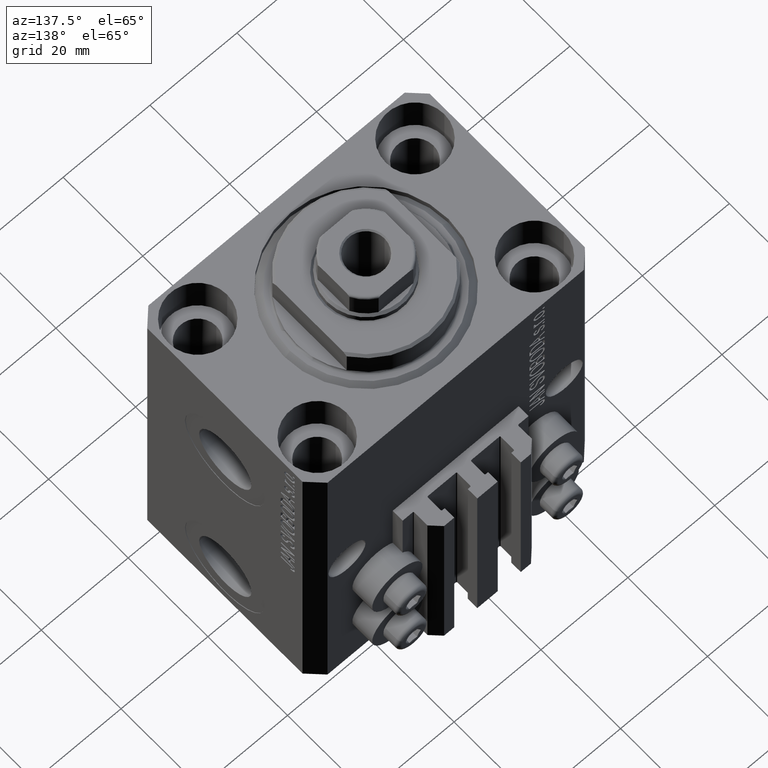
[diagram: clean part render]
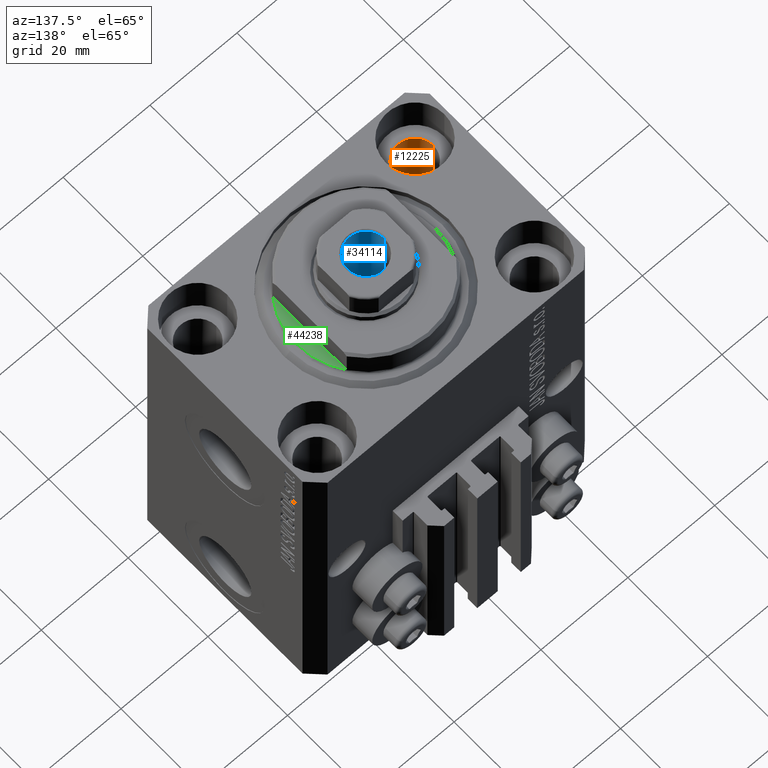
[diagram: same view with three faces highlighted in distinct colors, each labeled with its STEP entity id]
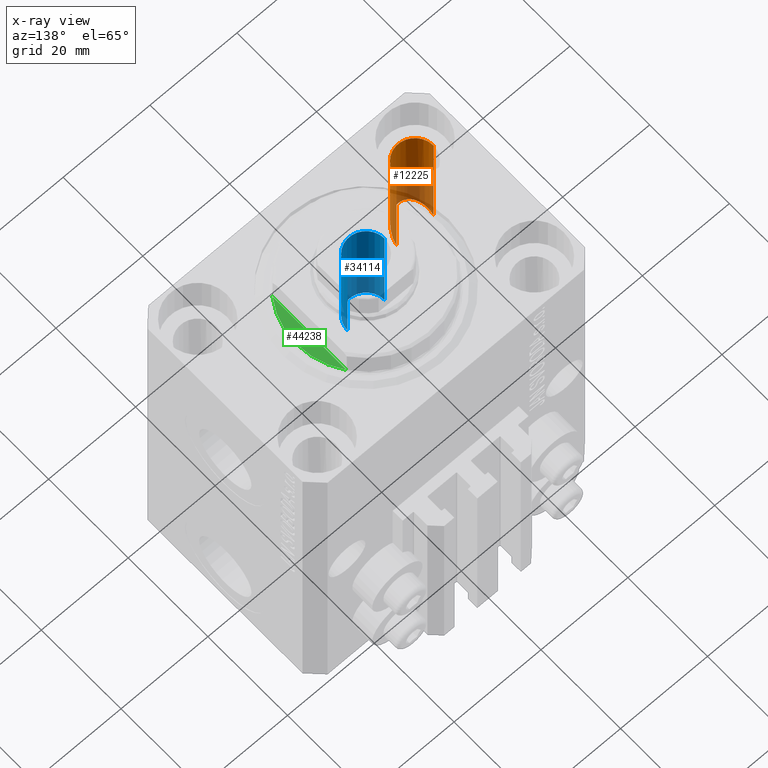
[diagram: x-ray of the same camera — body ghosted, the three highlighted faces saturated]
A machine part, auxiliary view with three faces highlighted in distinct colors.
The next image is the same camera in x-ray (body ghosted, the three faces saturated) — at least one of them is partly hidden behind the body in this view.
Their STEP definitions:

[orange] entity #12225 — the highlighted cylindrical surface (edge-blend (fillet) strip) has radius 4.25 mm, axis along (0, 0, 1).
#2353 = FACE_OUTER_BOUND ( 'NONE', #5673, .T. ) ;
#2759 = CARTESIAN_POINT ( 'NONE',  ( -20.74999999998233946, -15.00000000000000000, -37.00000000000000000 ) ) ;
#3603 = CARTESIAN_POINT ( 'NONE',  ( -25.00000000000000355, -15.00000000000000000, -9.000000000000000000 ) ) ;
#4931 = VECTOR ( 'NONE', #30418, 1000.000000000000000 ) ;
#5673 = EDGE_LOOP ( 'NONE', ( #9025, #20532, #26537, #43459 ) ) ;
#8249 = EDGE_CURVE ( 'NONE', #19794, #13186, #26086, .T. ) ;
#8651 = VECTOR ( 'NONE', #44242, 1000.000000000000000 ) ;
#9025 = ORIENTED_EDGE ( 'NONE', *, *, #47203, .T. ) ;
#9043 = DIRECTION ( 'NONE',  ( 1.000000000000000000, 0.000000000000000000, 0.000000000000000000 ) ) ;
#10910 = CARTESIAN_POINT ( 'NONE',  ( -20.74999999998233946, -23.50000000003532108, -28.49999999996468247 ) ) ;
#12225 = ADVANCED_FACE ( 'NONE', ( #2353 ), #13097, .F. ) ;
#13097 = CYLINDRICAL_SURFACE ( 'NONE', #19324, 4.250000000041540105 ) ;
#13186 = VERTEX_POINT ( 'NONE', #36163 ) ;
#14347 = DIRECTION ( 'NONE',  ( 0.000000000000000000, 0.000000000000000000, 1.000000000000000000 ) ) ;
#15162 = CARTESIAN_POINT ( 'NONE',  ( -29.25000000004154543, -15.00000000000000000, -77.00000000000000000 ) ) ;
#17158 = CARTESIAN_POINT ( 'NONE',  ( -25.00000000000000355, -15.00000000000000000, -77.00000000000000000 ) ) ;
#18168 = DIRECTION ( 'NONE',  ( 1.000000000000000000, 0.000000000000000000, 0.000000000000000000 ) ) ;
#18711 = CARTESIAN_POINT ( 'NONE',  ( -20.74999999995846522, -15.00000000000000000, -77.00000000000000000 ) ) ;
#19324 = AXIS2_PLACEMENT_3D ( 'NONE', #17158, #41744, #9043 ) ;
#19575 = CARTESIAN_POINT ( 'NONE',  ( -29.25000000001766409, -15.00000000000000000, -37.00000000000000000 ) ) ;
#19794 = VERTEX_POINT ( 'NONE', #2759 ) ;
#20030 = EDGE_CURVE ( 'NONE', #34042, #39090, #22310, .T. ) ;
#20532 = ORIENTED_EDGE ( 'NONE', *, *, #20030, .T. ) ;
#20729 = CARTESIAN_POINT ( 'NONE',  ( -29.25000000001766409, -23.50000000003532108, -28.49999999996468247 ) ) ;
#22310 = LINE ( 'NONE', #15162, #4931 ) ;
#25461 = CARTESIAN_POINT ( 'NONE',  ( -20.74999999998233946, -15.00000000000000000, -37.00000000000000000 ) ) ;
#25606 = CIRCLE ( 'NONE', #33263, 4.250000000041540105 ) ;
#26086 = LINE ( 'NONE', #18711, #8651 ) ;
#26537 = ORIENTED_EDGE ( 'NONE', *, *, #43108, .T. ) ;
#30418 = DIRECTION ( 'NONE',  ( -0.000000000000000000, -0.000000000000000000, 1.000000000000000000 ) ) ;
#33263 = AXIS2_PLACEMENT_3D ( 'NONE', #3603, #14347, #18168 ) ;
#34042 = VERTEX_POINT ( 'NONE', #19575 ) ;
#36163 = CARTESIAN_POINT ( 'NONE',  ( -20.74999999995846522, -15.00000000000000000, -9.000000000000000000 ) ) ;
#39090 = VERTEX_POINT ( 'NONE', #45355 ) ;
#39567 =( BOUNDED_CURVE ( )  B_SPLINE_CURVE ( 3, ( #25461, #10910, #20729, #46485 ),
 .UNSPECIFIED., .F., .F. ) 
 B_SPLINE_CURVE_WITH_KNOTS ( ( 4, 4 ),
 ( 4.712388980384689674, 7.853981633974482790 ),
 .UNSPECIFIED. ) 
 CURVE ( )  GEOMETRIC_REPRESENTATION_ITEM ( )  RATIONAL_B_SPLINE_CURVE ( ( 1.000000000000000000, 0.3333333333333333703, 0.3333333333333333703, 1.000000000000000000 ) ) 
 REPRESENTATION_ITEM ( '' )  );
#41744 = DIRECTION ( 'NONE',  ( -0.000000000000000000, -0.000000000000000000, 1.000000000000000000 ) ) ;
#43108 = EDGE_CURVE ( 'NONE', #39090, #13186, #25606, .T. ) ;
#43459 = ORIENTED_EDGE ( 'NONE', *, *, #8249, .F. ) ;
#44242 = DIRECTION ( 'NONE',  ( -0.000000000000000000, -0.000000000000000000, 1.000000000000000000 ) ) ;
#45355 = CARTESIAN_POINT ( 'NONE',  ( -29.25000000004154543, -15.00000000000000000, -9.000000000000000000 ) ) ;
#46485 = CARTESIAN_POINT ( 'NONE',  ( -29.25000000001766409, -15.00000000000000000, -37.00000000000000000 ) ) ;
#47203 = EDGE_CURVE ( 'NONE', #19794, #34042, #39567, .T. ) ;

[blue] entity #34114 — the highlighted cylindrical surface (edge-blend (fillet) strip) has radius 4.25 mm, axis along (0, 0, 1).
#198 = EDGE_CURVE ( 'NONE', #6131, #33472, #16762, .T. ) ;
#855 = AXIS2_PLACEMENT_3D ( 'NONE', #17613, #3286, #46490 ) ;
#876 = DIRECTION ( 'NONE',  ( -0.000000000000000000, -0.000000000000000000, 1.000000000000000000 ) ) ;
#973 = ORIENTED_EDGE ( 'NONE', *, *, #3450, .F. ) ;
#3286 = DIRECTION ( 'NONE',  ( -0.000000000000000000, -0.000000000000000000, 1.000000000000000000 ) ) ;
#3450 = EDGE_CURVE ( 'NONE', #12197, #11165, #15331, .T. ) ;
#5158 = CARTESIAN_POINT ( 'NONE',  ( 4.249999999999996447, 0.000000000000000000, 84.00000000000000000 ) ) ;
#5708 = CYLINDRICAL_SURFACE ( 'NONE', #29638, 4.249999999999996447 ) ;
#6131 = VERTEX_POINT ( 'NONE', #18997 ) ;
#7555 = CARTESIAN_POINT ( 'NONE',  ( -4.249999999999996447, 5.204748896376247741E-16, 84.00000000000000000 ) ) ;
#9409 = ORIENTED_EDGE ( 'NONE', *, *, #22296, .F. ) ;
#9640 = DIRECTION ( 'NONE',  ( 0.000000000000000000, 0.000000000000000000, 1.000000000000000000 ) ) ;
#9937 = ORIENTED_EDGE ( 'NONE', *, *, #198, .T. ) ;
#11165 = VERTEX_POINT ( 'NONE', #43856 ) ;
#12197 = VERTEX_POINT ( 'NONE', #13335 ) ;
#12221 = ORIENTED_EDGE ( 'NONE', *, *, #37713, .T. ) ;
#13335 = CARTESIAN_POINT ( 'NONE',  ( -4.249999999999994671, 5.204748896376244783E-16, 59.00000000000000711 ) ) ;
#15331 = CIRCLE ( 'NONE', #855, 4.249999999999994671 ) ;
#15643 = CARTESIAN_POINT ( 'NONE',  ( 4.249999999999996447, 0.000000000000000000, 83.70000000000001705 ) ) ;
#16762 = CIRCLE ( 'NONE', #43437, 4.249999999999996447 ) ;
#17210 = EDGE_LOOP ( 'NONE', ( #973, #12221, #9937, #9409 ) ) ;
#17613 = CARTESIAN_POINT ( 'NONE',  ( 0.000000000000000000, 0.000000000000000000, 59.00000000000000711 ) ) ;
#17931 = VECTOR ( 'NONE', #876, 1000.000000000000000 ) ;
#18997 = CARTESIAN_POINT ( 'NONE',  ( -4.249999999999996447, 5.204748896376247741E-16, 83.70000000000001705 ) ) ;
#21390 = VECTOR ( 'NONE', #40720, 1000.000000000000000 ) ;
#22296 = EDGE_CURVE ( 'NONE', #11165, #33472, #23288, .T. ) ;
#23288 = LINE ( 'NONE', #5158, #17931 ) ;
#24061 = DIRECTION ( 'NONE',  ( 1.000000000000000000, 0.000000000000000000, 0.000000000000000000 ) ) ;
#24299 = CARTESIAN_POINT ( 'NONE',  ( 0.000000000000000000, 0.000000000000000000, 84.00000000000000000 ) ) ;
#29638 = AXIS2_PLACEMENT_3D ( 'NONE', #24299, #42455, #24061 ) ;
#33472 = VERTEX_POINT ( 'NONE', #15643 ) ;
#34114 = ADVANCED_FACE ( 'NONE', ( #34583 ), #5708, .F. ) ;
#34583 = FACE_OUTER_BOUND ( 'NONE', #17210, .T. ) ;
#35632 = CARTESIAN_POINT ( 'NONE',  ( 0.000000000000000000, 0.000000000000000000, 83.70000000000001705 ) ) ;
#37713 = EDGE_CURVE ( 'NONE', #12197, #6131, #40478, .T. ) ;
#40478 = LINE ( 'NONE', #7555, #21390 ) ;
#40720 = DIRECTION ( 'NONE',  ( -0.000000000000000000, -0.000000000000000000, 1.000000000000000000 ) ) ;
#42455 = DIRECTION ( 'NONE',  ( -0.000000000000000000, -0.000000000000000000, 1.000000000000000000 ) ) ;
#42577 = DIRECTION ( 'NONE',  ( 1.000000000000000000, 0.000000000000000000, 0.000000000000000000 ) ) ;
#43437 = AXIS2_PLACEMENT_3D ( 'NONE', #35632, #9640, #42577 ) ;
#43856 = CARTESIAN_POINT ( 'NONE',  ( 4.249999999999994671, 0.000000000000000000, 59.00000000000000711 ) ) ;
#46490 = DIRECTION ( 'NONE',  ( 1.000000000000000000, 0.000000000000000000, 0.000000000000000000 ) ) ;

[green] entity #44238 — the highlighted planar face has unit normal (0, 0, 1).
#517 = CIRCLE ( 'NONE', #8160, 16.00000000000000000 ) ;
#2617 = DIRECTION ( 'NONE',  ( -1.000000000000000000, 0.000000000000000000, -0.000000000000000000 ) ) ;
#2630 = EDGE_CURVE ( 'NONE', #33650, #43563, #43790, .T. ) ;
#2981 = DIRECTION ( 'NONE',  ( -0.000000000000000000, -1.000000000000000000, -0.000000000000000000 ) ) ;
#4026 = EDGE_LOOP ( 'NONE', ( #10509, #9997, #42976 ) ) ;
#6431 = PLANE ( 'NONE',  #40136 ) ;
#6816 = CARTESIAN_POINT ( 'NONE',  ( -16.00000000000000000, 1.990051048614449313E-15, -0.4999999999999995559 ) ) ;
#8154 = AXIS2_PLACEMENT_3D ( 'NONE', #21029, #22143, #43623 ) ;
#8160 = AXIS2_PLACEMENT_3D ( 'NONE', #45993, #23560, #13301 ) ;
#9997 = ORIENTED_EDGE ( 'NONE', *, *, #29684, .T. ) ;
#10509 = ORIENTED_EDGE ( 'NONE', *, *, #44572, .T. ) ;
#13211 = VERTEX_POINT ( 'NONE', #6816 ) ;
#13301 = DIRECTION ( 'NONE',  ( 1.000000000000000000, 2.664535259100375697E-15, 0.000000000000000000 ) ) ;
#14907 = CARTESIAN_POINT ( 'NONE',  ( -13.00000000000000000, -43.08131845707602992, -0.4999999999999995559 ) ) ;
#15949 = CARTESIAN_POINT ( 'NONE',  ( -13.00000000000000000, -9.327379053088815652, -0.4999999999999995559 ) ) ;
#18816 = CIRCLE ( 'NONE', #8154, 16.00000000000000000 ) ;
#21029 = CARTESIAN_POINT ( 'NONE',  ( 0.000000000000000000, 0.000000000000000000, -0.4999999999999995559 ) ) ;
#22143 = DIRECTION ( 'NONE',  ( -0.000000000000000000, -0.000000000000000000, -1.000000000000000000 ) ) ;
#23560 = DIRECTION ( 'NONE',  ( -0.000000000000000000, -0.000000000000000000, -1.000000000000000000 ) ) ;
#23843 = FACE_OUTER_BOUND ( 'NONE', #4026, .T. ) ;
#27900 = DIRECTION ( 'NONE',  ( 0.000000000000000000, 0.000000000000000000, -1.000000000000000000 ) ) ;
#29037 = VECTOR ( 'NONE', #2981, 1000.000000000000000 ) ;
#29684 = EDGE_CURVE ( 'NONE', #13211, #33650, #18816, .T. ) ;
#33650 = VERTEX_POINT ( 'NONE', #46847 ) ;
#38649 = CARTESIAN_POINT ( 'NONE',  ( 0.000000000000000000, 0.000000000000000000, -0.4999999999999995559 ) ) ;
#40136 = AXIS2_PLACEMENT_3D ( 'NONE', #38649, #27900, #2617 ) ;
#42976 = ORIENTED_EDGE ( 'NONE', *, *, #2630, .T. ) ;
#43563 = VERTEX_POINT ( 'NONE', #15949 ) ;
#43623 = DIRECTION ( 'NONE',  ( 1.000000000000000000, 0.000000000000000000, 0.000000000000000000 ) ) ;
#43790 = LINE ( 'NONE', #14907, #29037 ) ;
#44238 = ADVANCED_FACE ( 'NONE', ( #23843 ), #6431, .T. ) ;
#44572 = EDGE_CURVE ( 'NONE', #43563, #13211, #517, .T. ) ;
#45993 = CARTESIAN_POINT ( 'NONE',  ( 0.000000000000000000, 0.000000000000000000, -0.4999999999999995559 ) ) ;
#46847 = CARTESIAN_POINT ( 'NONE',  ( -13.00000000000000000, 9.327379053088815652, -0.4999999999999995559 ) ) ;